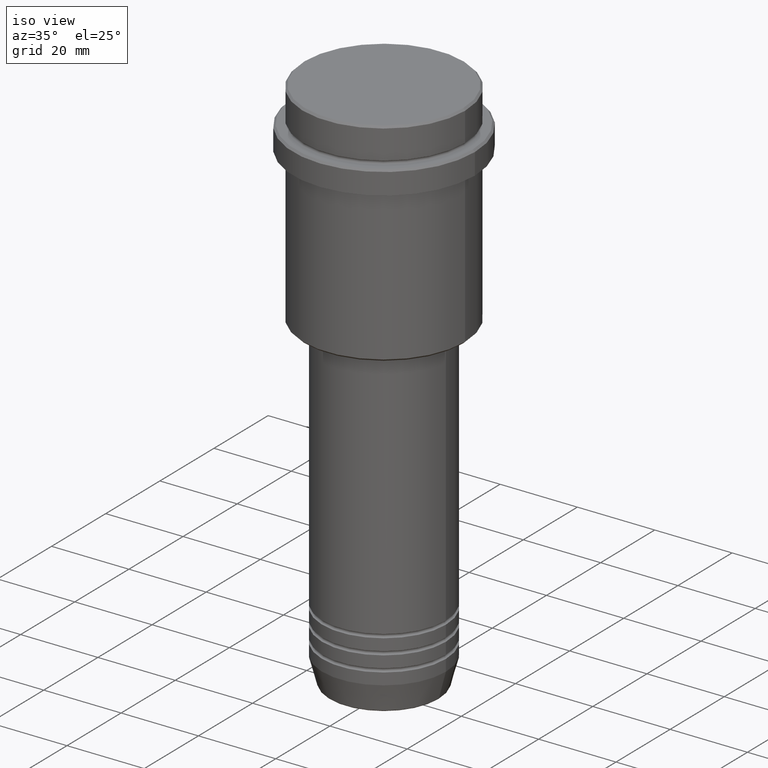
[diagram: clean part render]
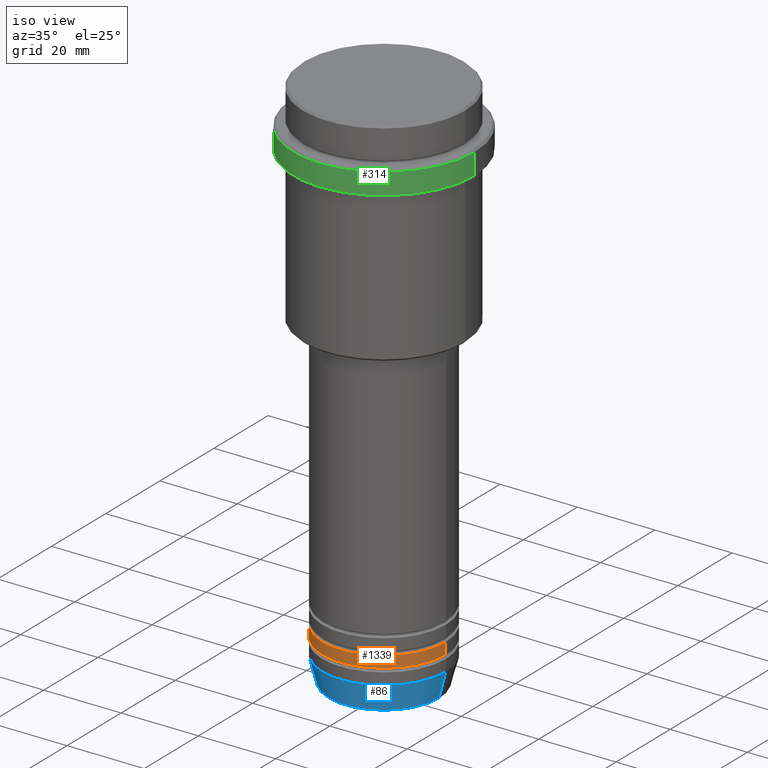
[diagram: same view with three faces highlighted in distinct colors, each labeled with its STEP entity id]
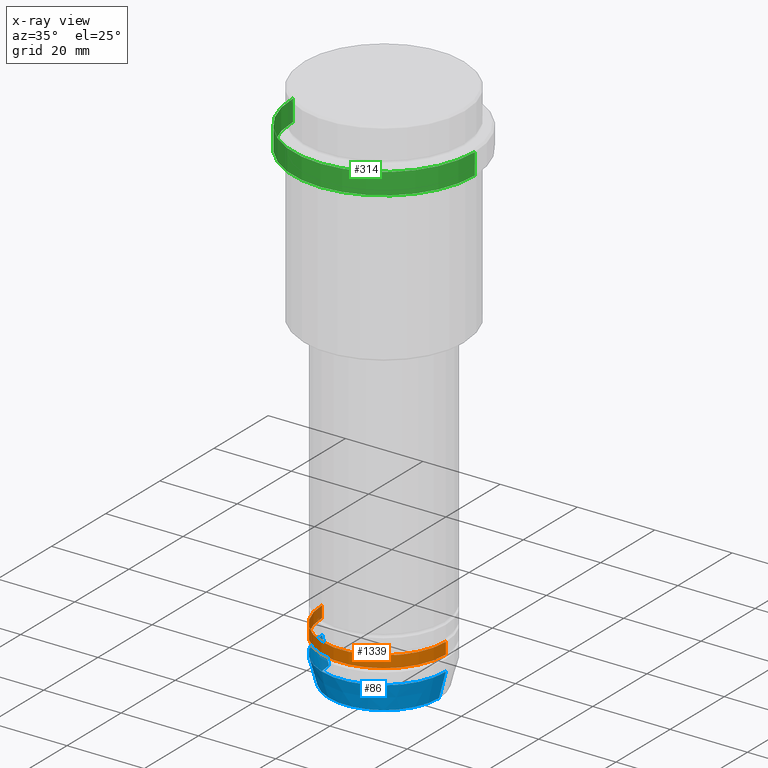
[diagram: x-ray of the same camera — body ghosted, the three highlighted faces saturated]
A machine part, iso view with three faces highlighted in distinct colors.
The next image is the same camera in x-ray (body ghosted, the three faces saturated) — at least one of them is partly hidden behind the body in this view.
Their STEP definitions:

[orange] entity #1339 — the highlighted cylindrical surface (partial cylindrical patch) has radius 16 mm, axis along (-0, -0, 1).
#17 = EDGE_CURVE ( 'NONE', #490, #221, #803, .T. ) ;
#22 = AXIS2_PLACEMENT_3D ( 'NONE', #940, #824, #371 ) ;
#162 = CIRCLE ( 'NONE', #1247, 16.00000000000000000 ) ;
#184 = VECTOR ( 'NONE', #561, 1000.000000000000000 ) ;
#216 = EDGE_CURVE ( 'NONE', #1131, #736, #217, .T. ) ;
#217 = LINE ( 'NONE', #987, #184 ) ;
#221 = VERTEX_POINT ( 'NONE', #687 ) ;
#230 = CARTESIAN_POINT ( 'NONE',  ( 0.000000000000000000, 0.000000000000000000, -125.9999999999998863 ) ) ;
#268 = DIRECTION ( 'NONE',  ( -0.000000000000000000, -0.000000000000000000, 1.000000000000000000 ) ) ;
#317 = EDGE_CURVE ( 'NONE', #221, #736, #162, .T. ) ;
#371 = DIRECTION ( 'NONE',  ( 1.000000000000000000, 0.000000000000000000, 0.000000000000000000 ) ) ;
#490 = VERTEX_POINT ( 'NONE', #1389 ) ;
#561 = DIRECTION ( 'NONE',  ( -0.000000000000000000, -0.000000000000000000, 1.000000000000000000 ) ) ;
#567 = ORIENTED_EDGE ( 'NONE', *, *, #216, .T. ) ;
#586 = CARTESIAN_POINT ( 'NONE',  ( 16.00000000000000000, 0.000000000000000000, -128.9999999999998863 ) ) ;
#590 = CARTESIAN_POINT ( 'NONE',  ( 16.00000000000000000, 0.000000000000000000, -125.9999999999998863 ) ) ;
#592 = ORIENTED_EDGE ( 'NONE', *, *, #1172, .T. ) ;
#619 = CYLINDRICAL_SURFACE ( 'NONE', #729, 16.00000000000000000 ) ;
#630 = FACE_OUTER_BOUND ( 'NONE', #745, .T. ) ;
#687 = CARTESIAN_POINT ( 'NONE',  ( -16.00000000000000000, 1.959434878635765131E-15, -125.9999999999998863 ) ) ;
#729 = AXIS2_PLACEMENT_3D ( 'NONE', #842, #1166, #1144 ) ;
#736 = VERTEX_POINT ( 'NONE', #590 ) ;
#745 = EDGE_LOOP ( 'NONE', ( #1345, #592, #567, #807 ) ) ;
#803 = LINE ( 'NONE', #809, #1143 ) ;
#807 = ORIENTED_EDGE ( 'NONE', *, *, #317, .F. ) ;
#809 = CARTESIAN_POINT ( 'NONE',  ( -16.00000000000000000, 1.959434878635765131E-15, 0.000000000000000000 ) ) ;
#824 = DIRECTION ( 'NONE',  ( -0.000000000000000000, -0.000000000000000000, 1.000000000000000000 ) ) ;
#842 = CARTESIAN_POINT ( 'NONE',  ( 0.000000000000000000, 0.000000000000000000, 0.000000000000000000 ) ) ;
#902 = CIRCLE ( 'NONE', #22, 16.00000000000000000 ) ;
#905 = DIRECTION ( 'NONE',  ( -0.000000000000000000, -0.000000000000000000, 1.000000000000000000 ) ) ;
#940 = CARTESIAN_POINT ( 'NONE',  ( 0.000000000000000000, 0.000000000000000000, -128.9999999999998863 ) ) ;
#987 = CARTESIAN_POINT ( 'NONE',  ( 16.00000000000000000, 0.000000000000000000, 0.000000000000000000 ) ) ;
#1131 = VERTEX_POINT ( 'NONE', #586 ) ;
#1143 = VECTOR ( 'NONE', #268, 1000.000000000000000 ) ;
#1144 = DIRECTION ( 'NONE',  ( 1.000000000000000000, 0.000000000000000000, 0.000000000000000000 ) ) ;
#1166 = DIRECTION ( 'NONE',  ( -0.000000000000000000, -0.000000000000000000, 1.000000000000000000 ) ) ;
#1172 = EDGE_CURVE ( 'NONE', #490, #1131, #902, .T. ) ;
#1181 = DIRECTION ( 'NONE',  ( 1.000000000000000000, 0.000000000000000000, 0.000000000000000000 ) ) ;
#1247 = AXIS2_PLACEMENT_3D ( 'NONE', #230, #905, #1181 ) ;
#1339 = ADVANCED_FACE ( 'NONE', ( #630 ), #619, .T. ) ;
#1345 = ORIENTED_EDGE ( 'NONE', *, *, #17, .F. ) ;
#1389 = CARTESIAN_POINT ( 'NONE',  ( -16.00000000000000000, 1.959434878635765131E-15, -128.9999999999998863 ) ) ;

[blue] entity #86 — the highlighted conical surface has half-angle 15 deg.
#3 = DIRECTION ( 'NONE',  ( -0.000000000000000000, -0.000000000000000000, 1.000000000000000000 ) ) ;
#6 = ORIENTED_EDGE ( 'NONE', *, *, #1312, .T. ) ;
#45 = ORIENTED_EDGE ( 'NONE', *, *, #1043, .F. ) ;
#86 = ADVANCED_FACE ( 'NONE', ( #551 ), #1050, .T. ) ;
#90 = VECTOR ( 'NONE', #1378, 1000.000000000000000 ) ;
#101 = VERTEX_POINT ( 'NONE', #885 ) ;
#139 = CARTESIAN_POINT ( 'NONE',  ( 14.22365507213718772, 0.000000000000000000, -139.6294095225512706 ) ) ;
#151 = DIRECTION ( 'NONE',  ( 1.000000000000000000, 0.000000000000000000, 0.000000000000000000 ) ) ;
#179 = DIRECTION ( 'NONE',  ( 0.2588190451025213501, 0.000000000000000000, 0.9659258262890680902 ) ) ;
#192 = CARTESIAN_POINT ( 'NONE',  ( -16.00000000000000000, 1.959434878635765131E-15, -133.0000000000000000 ) ) ;
#213 = ORIENTED_EDGE ( 'NONE', *, *, #525, .F. ) ;
#232 = DIRECTION ( 'NONE',  ( 1.000000000000000000, 0.000000000000000000, 0.000000000000000000 ) ) ;
#242 = CARTESIAN_POINT ( 'NONE',  ( 0.000000000000000000, 0.000000000000000000, -133.0000000000000000 ) ) ;
#264 = EDGE_CURVE ( 'NONE', #919, #1259, #811, .T. ) ;
#292 = CARTESIAN_POINT ( 'NONE',  ( 16.00000000000000000, 0.000000000000000000, -133.0000000000000000 ) ) ;
#405 = CIRCLE ( 'NONE', #1376, 16.00000000000000000 ) ;
#453 = DIRECTION ( 'NONE',  ( 1.000000000000000000, 0.000000000000000000, 0.000000000000000000 ) ) ;
#516 = AXIS2_PLACEMENT_3D ( 'NONE', #871, #3, #453 ) ;
#525 = EDGE_CURVE ( 'NONE', #919, #101, #859, .T. ) ;
#551 = FACE_OUTER_BOUND ( 'NONE', #1367, .T. ) ;
#582 = CARTESIAN_POINT ( 'NONE',  ( 0.000000000000000000, 0.000000000000000000, -139.6294095225512706 ) ) ;
#746 = CARTESIAN_POINT ( 'NONE',  ( -14.22365507213718772, 1.850665122131323337E-15, -139.6294095225512706 ) ) ;
#811 = CIRCLE ( 'NONE', #1031, 14.22365507213718772 ) ;
#827 = LINE ( 'NONE', #292, #968 ) ;
#859 = LINE ( 'NONE', #192, #90 ) ;
#870 = DIRECTION ( 'NONE',  ( -0.000000000000000000, -0.000000000000000000, 1.000000000000000000 ) ) ;
#871 = CARTESIAN_POINT ( 'NONE',  ( 0.000000000000000000, 0.000000000000000000, -133.0000000000000000 ) ) ;
#885 = CARTESIAN_POINT ( 'NONE',  ( -16.00000000000000000, 1.959434878635765131E-15, -133.0000000000000000 ) ) ;
#919 = VERTEX_POINT ( 'NONE', #746 ) ;
#920 = CARTESIAN_POINT ( 'NONE',  ( 16.00000000000000000, 0.000000000000000000, -133.0000000000000000 ) ) ;
#968 = VECTOR ( 'NONE', #179, 1000.000000000000000 ) ;
#1017 = ORIENTED_EDGE ( 'NONE', *, *, #264, .T. ) ;
#1031 = AXIS2_PLACEMENT_3D ( 'NONE', #582, #1222, #151 ) ;
#1043 = EDGE_CURVE ( 'NONE', #101, #1192, #405, .T. ) ;
#1050 = CONICAL_SURFACE ( 'NONE', #516, 16.00000000000000000, 0.2617993877991500740 ) ;
#1192 = VERTEX_POINT ( 'NONE', #920 ) ;
#1222 = DIRECTION ( 'NONE',  ( -0.000000000000000000, -0.000000000000000000, 1.000000000000000000 ) ) ;
#1259 = VERTEX_POINT ( 'NONE', #139 ) ;
#1312 = EDGE_CURVE ( 'NONE', #1259, #1192, #827, .T. ) ;
#1367 = EDGE_LOOP ( 'NONE', ( #213, #1017, #6, #45 ) ) ;
#1376 = AXIS2_PLACEMENT_3D ( 'NONE', #242, #870, #232 ) ;
#1378 = DIRECTION ( 'NONE',  ( -0.2588190451025213501, 3.169619151431772337E-17, 0.9659258262890680902 ) ) ;

[green] entity #314 — the highlighted cylindrical surface (partial cylindrical patch) has radius 23.5 mm, axis along (-0, -0, 1).
#20 = FACE_OUTER_BOUND ( 'NONE', #102, .T. ) ;
#26 = CARTESIAN_POINT ( 'NONE',  ( -23.50000000000000000, 2.877919977996280320E-15, 0.000000000000000000 ) ) ;
#70 = VECTOR ( 'NONE', #1391, 1000.000000000000000 ) ;
#95 = VERTEX_POINT ( 'NONE', #891 ) ;
#102 = EDGE_LOOP ( 'NONE', ( #924, #855, #702, #121 ) ) ;
#106 = VERTEX_POINT ( 'NONE', #747 ) ;
#116 = CIRCLE ( 'NONE', #1010, 23.50000000000000355 ) ;
#121 = ORIENTED_EDGE ( 'NONE', *, *, #1388, .T. ) ;
#138 = EDGE_CURVE ( 'NONE', #106, #95, #116, .T. ) ;
#196 = DIRECTION ( 'NONE',  ( 1.000000000000000000, 0.000000000000000000, 0.000000000000000000 ) ) ;
#222 = VERTEX_POINT ( 'NONE', #1323 ) ;
#303 = DIRECTION ( 'NONE',  ( 0.000000000000000000, 0.000000000000000000, -1.000000000000000000 ) ) ;
#311 = EDGE_CURVE ( 'NONE', #95, #1390, #660, .T. ) ;
#314 = ADVANCED_FACE ( 'NONE', ( #20 ), #446, .T. ) ;
#431 = DIRECTION ( 'NONE',  ( -0.000000000000000000, -0.000000000000000000, 1.000000000000000000 ) ) ;
#439 = DIRECTION ( 'NONE',  ( 1.000000000000000000, 0.000000000000000000, 0.000000000000000000 ) ) ;
#446 = CYLINDRICAL_SURFACE ( 'NONE', #782, 23.50000000000000000 ) ;
#457 = CARTESIAN_POINT ( 'NONE',  ( 0.000000000000000000, 0.000000000000000000, 0.000000000000000000 ) ) ;
#588 = EDGE_CURVE ( 'NONE', #106, #222, #1007, .T. ) ;
#634 = CARTESIAN_POINT ( 'NONE',  ( 23.50000000000000000, 0.000000000000000000, -9.499999999999985789 ) ) ;
#660 = LINE ( 'NONE', #917, #70 ) ;
#702 = ORIENTED_EDGE ( 'NONE', *, *, #311, .T. ) ;
#747 = CARTESIAN_POINT ( 'NONE',  ( -23.50000000000000711, 2.877919977996281109E-15, -15.00000000000000000 ) ) ;
#753 = VECTOR ( 'NONE', #998, 1000.000000000000000 ) ;
#762 = DIRECTION ( 'NONE',  ( -0.000000000000000000, -0.000000000000000000, 1.000000000000000000 ) ) ;
#782 = AXIS2_PLACEMENT_3D ( 'NONE', #457, #762, #439 ) ;
#810 = CIRCLE ( 'NONE', #1066, 23.50000000000000000 ) ;
#855 = ORIENTED_EDGE ( 'NONE', *, *, #138, .T. ) ;
#891 = CARTESIAN_POINT ( 'NONE',  ( 23.50000000000000355, 0.000000000000000000, -15.00000000000000000 ) ) ;
#917 = CARTESIAN_POINT ( 'NONE',  ( 23.50000000000000000, 0.000000000000000000, 0.000000000000000000 ) ) ;
#924 = ORIENTED_EDGE ( 'NONE', *, *, #588, .F. ) ;
#966 = CARTESIAN_POINT ( 'NONE',  ( 0.000000000000000000, 0.000000000000000000, -9.499999999999985789 ) ) ;
#998 = DIRECTION ( 'NONE',  ( -0.000000000000000000, -0.000000000000000000, 1.000000000000000000 ) ) ;
#1007 = LINE ( 'NONE', #26, #753 ) ;
#1010 = AXIS2_PLACEMENT_3D ( 'NONE', #1056, #431, #1242 ) ;
#1056 = CARTESIAN_POINT ( 'NONE',  ( 0.000000000000000000, 0.000000000000000000, -15.00000000000000000 ) ) ;
#1066 = AXIS2_PLACEMENT_3D ( 'NONE', #966, #303, #196 ) ;
#1242 = DIRECTION ( 'NONE',  ( 1.000000000000000000, 0.000000000000000000, 0.000000000000000000 ) ) ;
#1323 = CARTESIAN_POINT ( 'NONE',  ( -23.50000000000000000, 2.877919977996280320E-15, -9.499999999999985789 ) ) ;
#1388 = EDGE_CURVE ( 'NONE', #1390, #222, #810, .T. ) ;
#1390 = VERTEX_POINT ( 'NONE', #634 ) ;
#1391 = DIRECTION ( 'NONE',  ( -0.000000000000000000, -0.000000000000000000, 1.000000000000000000 ) ) ;